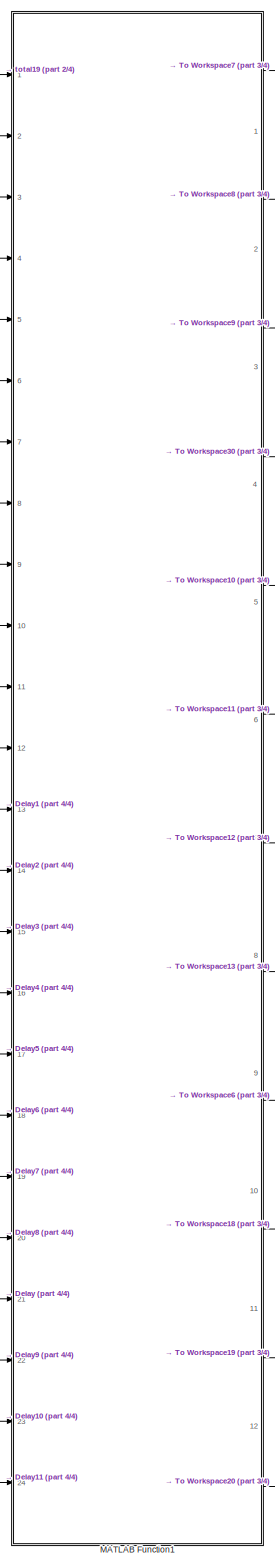
[diagram: root canvas - part 1/4, right side, full height]
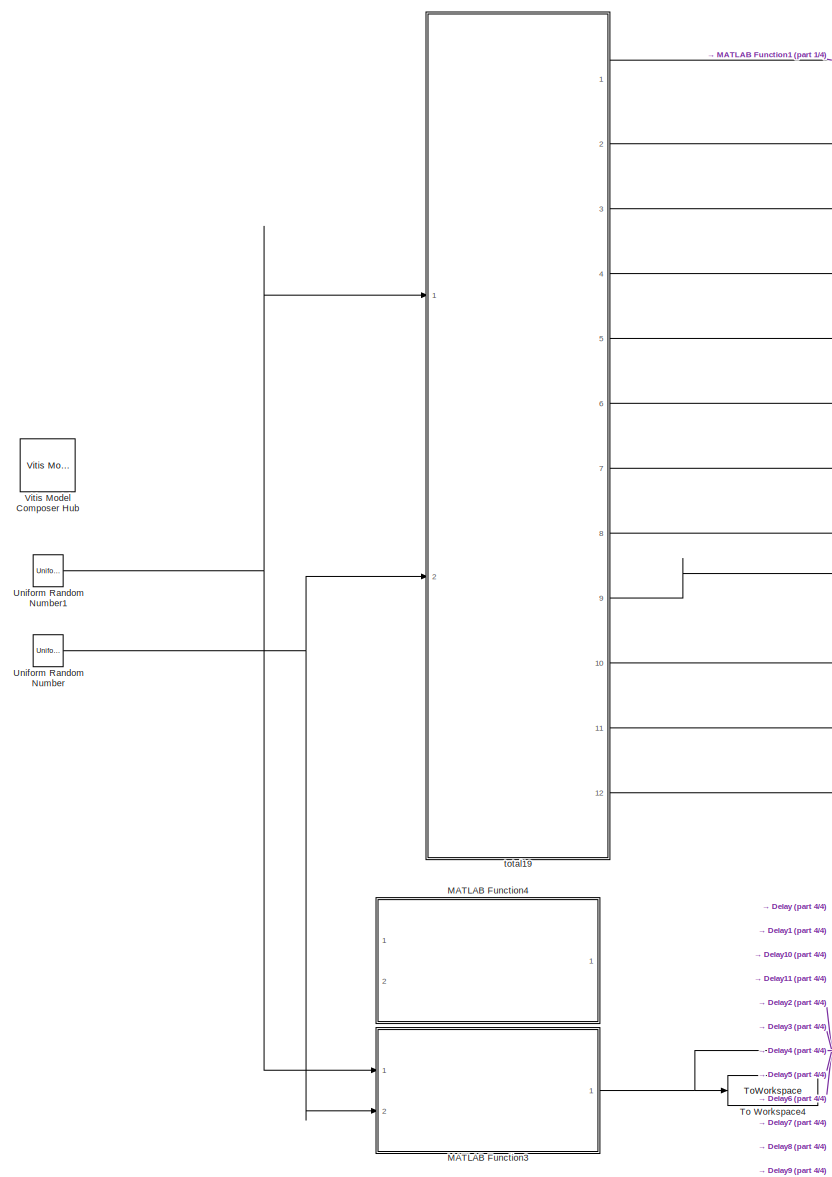
[diagram: root canvas - part 2/4, middle left region]
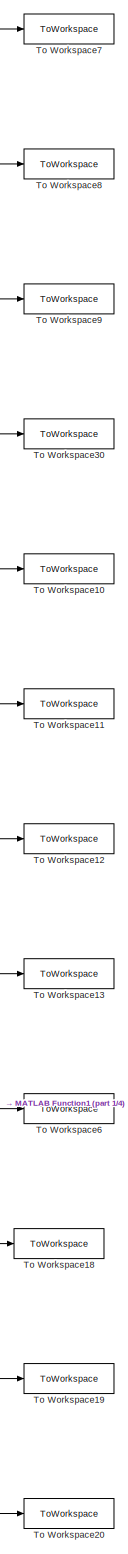
[diagram: root canvas - part 3/4, right side, full height]
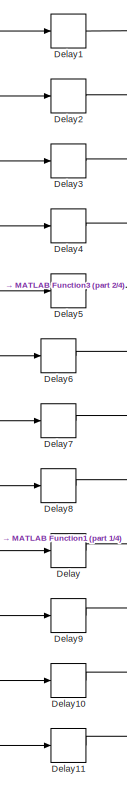
[diagram: root canvas - part 4/4, bottom center region]
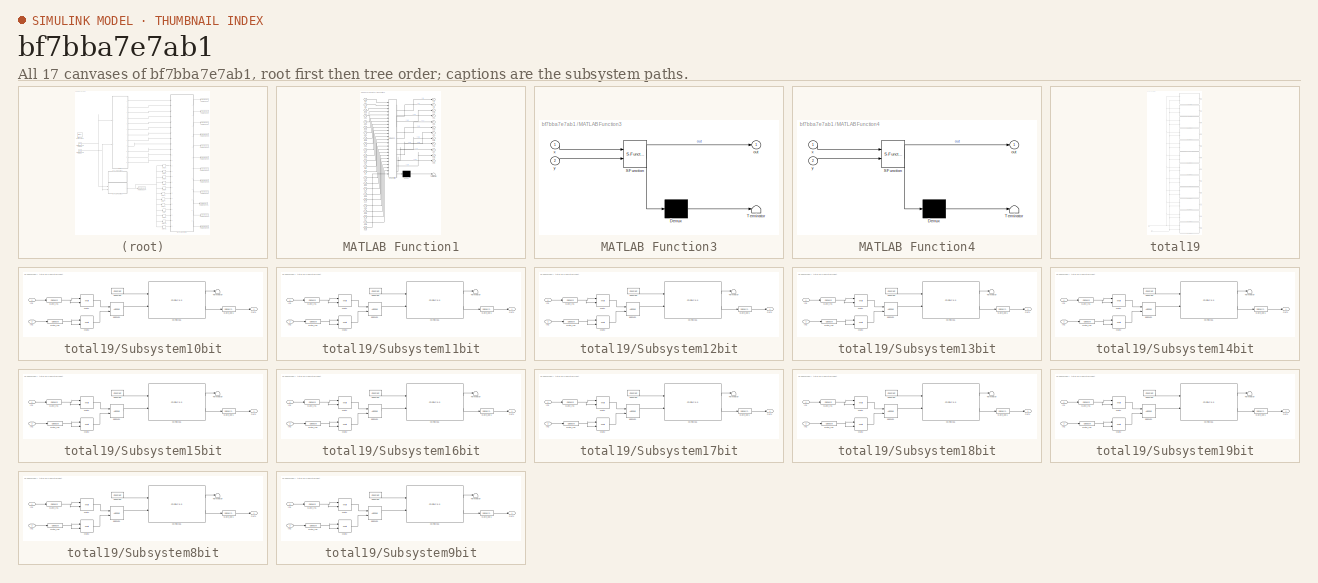
[diagram: thumbnail index - all 17 canvases of the model, root first then tree order]
MODEL slx_bf7bba7e7ab1
KIND model
CONFIG AbsTol = auto
CONFIG EnableMultiTasking = off
CONFIG FixedStep = auto
CONFIG MaxStep = auto
CONFIG MinStep = auto
CONFIG RelTol = 1e-3
CONFIG SampleTimeConstraint = Unconstrained
CONFIG SolverName = VariableStepAuto
CONFIG StartTime = 0.0
CONFIG StopTime = 116
BLOCK [Delay] Delay
  DelayLength = 9
  InputPortMap = u0
  Ports = [1, 1]
BLOCK [Delay] Delay1
  DelayLength = 5
  InputPortMap = u0
  Ports = [1, 1]
BLOCK [Delay] Delay10
  DelayLength = 10
  InputPortMap = u0
  Ports = [1, 1]
BLOCK [Delay] Delay11
  DelayLength = 10
  InputPortMap = u0
  Ports = [1, 1]
BLOCK [Delay] Delay2
  DelayLength = 5
  InputPortMap = u0
  Ports = [1, 1]
BLOCK [Delay] Delay3
  DelayLength = 6
  InputPortMap = u0
  Ports = [1, 1]
BLOCK [Delay] Delay4
  DelayLength = 6
  InputPortMap = u0
  Ports = [1, 1]
BLOCK [Delay] Delay5
  DelayLength = 7
  InputPortMap = u0
  Ports = [1, 1]
BLOCK [Delay] Delay6
  DelayLength = 7
  InputPortMap = u0
  Ports = [1, 1]
BLOCK [Delay] Delay7
  DelayLength = 8
  InputPortMap = u0
  Ports = [1, 1]
BLOCK [Delay] Delay8
  DelayLength = 8
  InputPortMap = u0
  Ports = [1, 1]
BLOCK [Delay] Delay9
  DelayLength = 9
  InputPortMap = u0
  Ports = [1, 1]
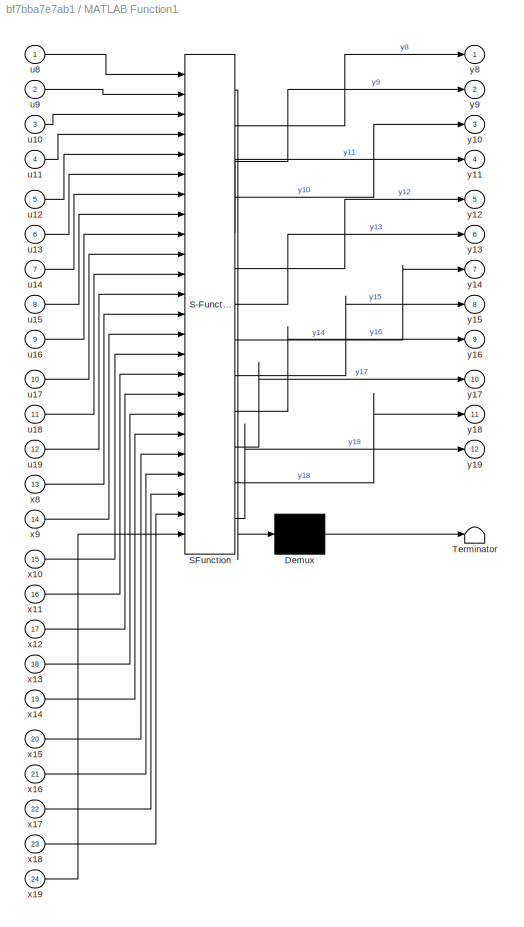
BLOCK [SubSystem] MATLAB Function1
  ErrorFcn = Stateflow.Translate.translate
  PermitHierarchicalResolution = ExplicitOnly
  Ports = [24, 12]
  RequestExecContextInheritance = off
  SFBlockType = MATLAB Function
  TreatAsAtomicUnit = on
BLOCK [Demux] MATLAB Function1/ Demux 
  Outputs = 1
  Ports = [1, 1]
BLOCK [S-Function] MATLAB Function1/ SFunction 
  EnableBusSupport = on
  FunctionName = sf_sfun
  PortCounts = [24 13]
  Ports = [24, 13]
  SFcnIsStateOwnerBlock = off
  SFunctionDeploymentMode = off
  Tag = Stateflow S-Function 1
BLOCK [Terminator] MATLAB Function1/ Terminator 
BLOCK [Inport] MATLAB Function1/u10
  Port = 3
BLOCK [Inport] MATLAB Function1/u11
  Port = 4
BLOCK [Inport] MATLAB Function1/u12
  Port = 5
BLOCK [Inport] MATLAB Function1/u13
  Port = 6
BLOCK [Inport] MATLAB Function1/u14
  Port = 7
BLOCK [Inport] MATLAB Function1/u15
  Port = 8
BLOCK [Inport] MATLAB Function1/u16
  Port = 9
BLOCK [Inport] MATLAB Function1/u17
  Port = 10
BLOCK [Inport] MATLAB Function1/u18
  Port = 11
BLOCK [Inport] MATLAB Function1/u19
  Port = 12
BLOCK [Inport] MATLAB Function1/u8
BLOCK [Inport] MATLAB Function1/u9
  Port = 2
BLOCK [Inport] MATLAB Function1/x10
  Port = 15
BLOCK [Inport] MATLAB Function1/x11
  Port = 16
BLOCK [Inport] MATLAB Function1/x12
  Port = 17
BLOCK [Inport] MATLAB Function1/x13
  Port = 18
BLOCK [Inport] MATLAB Function1/x14
  Port = 19
BLOCK [Inport] MATLAB Function1/x15
  Port = 20
BLOCK [Inport] MATLAB Function1/x16
  Port = 21
BLOCK [Inport] MATLAB Function1/x17
  Port = 22
BLOCK [Inport] MATLAB Function1/x18
  Port = 23
BLOCK [Inport] MATLAB Function1/x19
  Port = 24
BLOCK [Inport] MATLAB Function1/x8
  Port = 13
BLOCK [Inport] MATLAB Function1/x9
  Port = 14
BLOCK [Outport] MATLAB Function1/y10
  Port = 3
BLOCK [Outport] MATLAB Function1/y11
  Port = 4
BLOCK [Outport] MATLAB Function1/y12
  Port = 5
BLOCK [Outport] MATLAB Function1/y13
  Port = 6
BLOCK [Outport] MATLAB Function1/y14
  Port = 7
BLOCK [Outport] MATLAB Function1/y15
  Port = 8
BLOCK [Outport] MATLAB Function1/y16
  Port = 9
BLOCK [Outport] MATLAB Function1/y17
  Port = 10
BLOCK [Outport] MATLAB Function1/y18
  Port = 11
BLOCK [Outport] MATLAB Function1/y19
  Port = 12
BLOCK [Outport] MATLAB Function1/y8
BLOCK [Outport] MATLAB Function1/y9
  Port = 2
BLOCK [SubSystem] MATLAB Function3
  ErrorFcn = Stateflow.Translate.translate
  PermitHierarchicalResolution = ExplicitOnly
  Ports = [2, 1]
  RequestExecContextInheritance = off
  SFBlockType = MATLAB Function
  TreatAsAtomicUnit = on
BLOCK [Demux] MATLAB Function3/ Demux 
  Outputs = 1
  Ports = [1, 1]
BLOCK [S-Function] MATLAB Function3/ SFunction 
  EnableBusSupport = on
  FunctionName = sf_sfun
  PortCounts = [2 2]
  Ports = [2, 2]
  SFcnIsStateOwnerBlock = off
  SFunctionDeploymentMode = off
  Tag = Stateflow S-Function 2
BLOCK [Terminator] MATLAB Function3/ Terminator 
BLOCK [Outport] MATLAB Function3/out
BLOCK [Inport] MATLAB Function3/x
BLOCK [Inport] MATLAB Function3/y
  Port = 2
BLOCK [SubSystem] MATLAB Function4
  Commented = on
  ErrorFcn = Stateflow.Translate.translate
  PermitHierarchicalResolution = ExplicitOnly
  Ports = [2, 1]
  RequestExecContextInheritance = off
  SFBlockType = MATLAB Function
  TreatAsAtomicUnit = on
BLOCK [Demux] MATLAB Function4/ Demux 
  Outputs = 1
  Ports = [1, 1]
BLOCK [S-Function] MATLAB Function4/ SFunction 
  EnableBusSupport = on
  FunctionName = sf_sfun
  PortCounts = [2 2]
  Ports = [2, 2]
  SFcnIsStateOwnerBlock = off
  SFunctionDeploymentMode = off
  Tag = Stateflow S-Function 4
BLOCK [Terminator] MATLAB Function4/ Terminator 
BLOCK [Outport] MATLAB Function4/out
BLOCK [Inport] MATLAB Function4/x
BLOCK [Inport] MATLAB Function4/y
  Port = 2
BLOCK [ToWorkspace] To Workspace10
  FixptAsFi = on
  MaxDataPoints = inf
  Ports = [1]
  SampleTime = -1
  SaveFormat = Structure With Time
  VariableName = out12
BLOCK [ToWorkspace] To Workspace11
  FixptAsFi = on
  MaxDataPoints = inf
  Ports = [1]
  SampleTime = -1
  SaveFormat = Structure With Time
  VariableName = out13
BLOCK [ToWorkspace] To Workspace12
  FixptAsFi = on
  MaxDataPoints = inf
  Ports = [1]
  SampleTime = -1
  SaveFormat = Structure With Time
  VariableName = out14
BLOCK [ToWorkspace] To Workspace13
  FixptAsFi = on
  MaxDataPoints = inf
  Ports = [1]
  SampleTime = -1
  SaveFormat = Structure With Time
  VariableName = out15
BLOCK [ToWorkspace] To Workspace18
  FixptAsFi = on
  MaxDataPoints = inf
  Ports = [1]
  SampleTime = -1
  SaveFormat = Structure With Time
  VariableName = out17
BLOCK [ToWorkspace] To Workspace19
  FixptAsFi = on
  MaxDataPoints = inf
  Ports = [1]
  SampleTime = -1
  SaveFormat = Structure With Time
  VariableName = out18
BLOCK [ToWorkspace] To Workspace20
  FixptAsFi = on
  MaxDataPoints = inf
  Ports = [1]
  SampleTime = -1
  SaveFormat = Structure With Time
  VariableName = out19
BLOCK [ToWorkspace] To Workspace30
  FixptAsFi = on
  MaxDataPoints = inf
  Ports = [1]
  SampleTime = -1
  SaveFormat = Structure With Time
  VariableName = out11
BLOCK [ToWorkspace] To Workspace4
  FixptAsFi = on
  MaxDataPoints = inf
  Ports = [1]
  SampleTime = -1
  SaveFormat = Structure With Time
  VariableName = outGOLD
BLOCK [ToWorkspace] To Workspace6
  FixptAsFi = on
  MaxDataPoints = inf
  Ports = [1]
  SampleTime = -1
  SaveFormat = Structure With Time
  VariableName = out16
BLOCK [ToWorkspace] To Workspace7
  FixptAsFi = on
  MaxDataPoints = inf
  Ports = [1]
  SampleTime = -1
  SaveFormat = Structure With Time
  VariableName = out8
BLOCK [ToWorkspace] To Workspace8
  FixptAsFi = on
  MaxDataPoints = inf
  Ports = [1]
  SampleTime = -1
  SaveFormat = Structure With Time
  VariableName = out9
BLOCK [ToWorkspace] To Workspace9
  FixptAsFi = on
  MaxDataPoints = inf
  Ports = [1]
  SampleTime = -1
  SaveFormat = Structure With Time
  VariableName = out10
BLOCK [UniformRandomNumber] Uniform Random Number
  Maximum = 0.9
  Minimum = -0.9
  SampleTime = 1
BLOCK [UniformRandomNumber] Uniform Random Number1
  Maximum = 0.9
  Minimum = -0.9
  SampleTime = 1
  Seed = 1
BLOCK [Reference] Vitis Model Composer Hub  REF=vmcUtilities/Vitis Model Composer Hub
  Ports = []
  SourceBlock = vmcUtilities/Vitis Model Composer Hub
  SourceType = Implementation
  Tag = genX
  UserDataPersistent = on
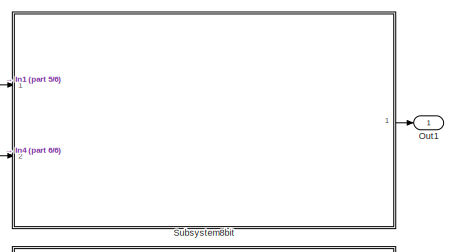
[diagram: total19 - part 1/6, top right region]
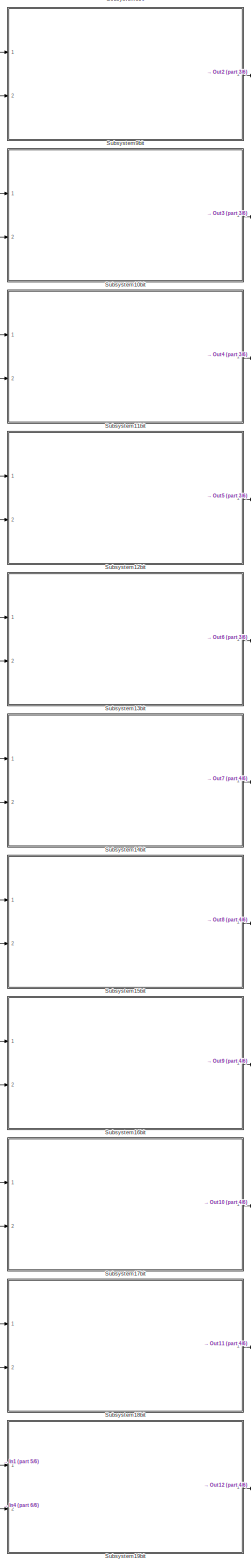
[diagram: total19 - part 2/6, right side, full height]
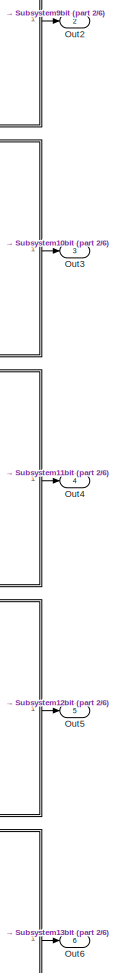
[diagram: total19 - part 3/6, top right region]
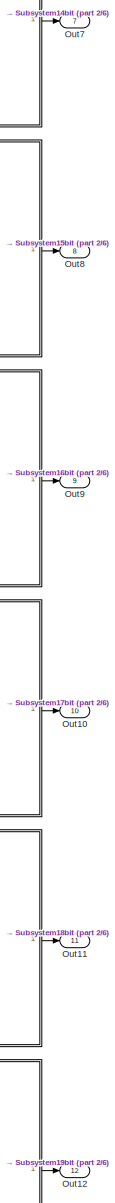
[diagram: total19 - part 4/6, bottom right region]
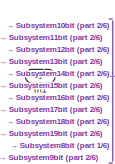
[diagram: total19 - part 5/6, bottom left region]
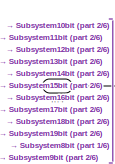
[diagram: total19 - part 6/6, bottom left region]
BLOCK [SubSystem] total19
  Ports = [2, 12]
  RequestExecContextInheritance = off
BLOCK [Inport] total19/In1
BLOCK [Inport] total19/In4
  Port = 2
BLOCK [Outport] total19/Out1
BLOCK [Outport] total19/Out10
  Port = 10
BLOCK [Outport] total19/Out11
  Port = 11
BLOCK [Outport] total19/Out12
  Port = 12
BLOCK [Outport] total19/Out2
  Port = 2
BLOCK [Outport] total19/Out3
  Port = 3
BLOCK [Outport] total19/Out4
  Port = 4
BLOCK [Outport] total19/Out5
  Port = 5
BLOCK [Outport] total19/Out6
  Port = 6
BLOCK [Outport] total19/Out7
  Port = 7
BLOCK [Outport] total19/Out8
  Port = 8
BLOCK [Outport] total19/Out9
  Port = 9
BLOCK [SubSystem] total19/Subsystem10bit
  Ports = [2, 1]
  RequestExecContextInheritance = off
BLOCK [Reference] total19/Subsystem10bit/CORDIC16  REF=hdlDSPIP/CORDIC 6.0 
  Ports = [2, 2]
  SourceBlock = hdlDSPIP/CORDIC 6.0
  SourceType = CORDIC 6.0 Block
BLOCK [Reference] total19/Subsystem10bit/Constant  REF=hdlBasic/Constant
  Ports = [0, 1]
  SourceBlock = hdlBasic/Constant
  SourceType = Constant Block Block
BLOCK [Reference] total19/Subsystem10bit/Gate_In1  REF=hdlBasic/Gateway In
  Ports = [1, 1]
  SourceBlock = hdlBasic/Gateway In
  SourceType = Gateway In Block
BLOCK [Reference] total19/Subsystem10bit/Gate_In2  REF=hdlBasic/Gateway In
  Ports = [1, 1]
  SourceBlock = hdlBasic/Gateway In
  SourceType = Gateway In Block
BLOCK [Reference] total19/Subsystem10bit/Gate_out1  REF=hdlBasic/Gateway Out
  Ports = [1, 1]
  SourceBlock = hdlBasic/Gateway Out
  SourceType = Gateway Out Block
BLOCK [Inport] total19/Subsystem10bit/In1
BLOCK [Inport] total19/Subsystem10bit/In2
  Port = 2
BLOCK [Reference] total19/Subsystem10bit/Mult1  REF=hdlBasic/Mult
  Ports = [2, 1]
  SourceBlock = hdlBasic/Mult
  SourceType = Multiplier Block
BLOCK [Reference] total19/Subsystem10bit/Mult2  REF=hdlBasic/Mult
  Ports = [2, 1]
  SourceBlock = hdlBasic/Mult
  SourceType = Multiplier Block
BLOCK [Outport] total19/Subsystem10bit/Out1
BLOCK [Terminator] total19/Subsystem10bit/Terminator
BLOCK [Reference] total19/Subsystem10bit/addsub1  REF=hdlBasic/AddSub
  Ports = [2, 1]
  SourceBlock = hdlBasic/AddSub
  SourceType = Adder/Subtracter Block
BLOCK [SubSystem] total19/Subsystem11bit
  Ports = [2, 1]
  RequestExecContextInheritance = off
BLOCK [Reference] total19/Subsystem11bit/CORDIC16  REF=hdlDSPIP/CORDIC 6.0 
  Ports = [2, 2]
  SourceBlock = hdlDSPIP/CORDIC 6.0
  SourceType = CORDIC 6.0 Block
BLOCK [Reference] total19/Subsystem11bit/Constant  REF=hdlBasic/Constant
  Ports = [0, 1]
  SourceBlock = hdlBasic/Constant
  SourceType = Constant Block Block
BLOCK [Reference] total19/Subsystem11bit/Gate_In1  REF=hdlBasic/Gateway In
  Ports = [1, 1]
  SourceBlock = hdlBasic/Gateway In
  SourceType = Gateway In Block
BLOCK [Reference] total19/Subsystem11bit/Gate_In2  REF=hdlBasic/Gateway In
  Ports = [1, 1]
  SourceBlock = hdlBasic/Gateway In
  SourceType = Gateway In Block
BLOCK [Reference] total19/Subsystem11bit/Gate_out1  REF=hdlBasic/Gateway Out
  Ports = [1, 1]
  SourceBlock = hdlBasic/Gateway Out
  SourceType = Gateway Out Block
BLOCK [Inport] total19/Subsystem11bit/In1
BLOCK [Inport] total19/Subsystem11bit/In2
  Port = 2
BLOCK [Reference] total19/Subsystem11bit/Mult1  REF=hdlBasic/Mult
  Ports = [2, 1]
  SourceBlock = hdlBasic/Mult
  SourceType = Multiplier Block
BLOCK [Reference] total19/Subsystem11bit/Mult2  REF=hdlBasic/Mult
  Ports = [2, 1]
  SourceBlock = hdlBasic/Mult
  SourceType = Multiplier Block
BLOCK [Outport] total19/Subsystem11bit/Out1
BLOCK [Terminator] total19/Subsystem11bit/Terminator
BLOCK [Reference] total19/Subsystem11bit/addsub1  REF=hdlBasic/AddSub
  Ports = [2, 1]
  SourceBlock = hdlBasic/AddSub
  SourceType = Adder/Subtracter Block
BLOCK [SubSystem] total19/Subsystem12bit
  Ports = [2, 1]
  RequestExecContextInheritance = off
BLOCK [Reference] total19/Subsystem12bit/CORDIC16  REF=hdlDSPIP/CORDIC 6.0 
  Ports = [2, 2]
  SourceBlock = hdlDSPIP/CORDIC 6.0
  SourceType = CORDIC 6.0 Block
BLOCK [Reference] total19/Subsystem12bit/Constant  REF=hdlBasic/Constant
  Ports = [0, 1]
  SourceBlock = hdlBasic/Constant
  SourceType = Constant Block Block
BLOCK [Reference] total19/Subsystem12bit/Gate_In1  REF=hdlBasic/Gateway In
  Ports = [1, 1]
  SourceBlock = hdlBasic/Gateway In
  SourceType = Gateway In Block
BLOCK [Reference] total19/Subsystem12bit/Gate_In2  REF=hdlBasic/Gateway In
  Ports = [1, 1]
  SourceBlock = hdlBasic/Gateway In
  SourceType = Gateway In Block
BLOCK [Reference] total19/Subsystem12bit/Gate_out1  REF=hdlBasic/Gateway Out
  Ports = [1, 1]
  SourceBlock = hdlBasic/Gateway Out
  SourceType = Gateway Out Block
BLOCK [Inport] total19/Subsystem12bit/In1
BLOCK [Inport] total19/Subsystem12bit/In2
  Port = 2
BLOCK [Reference] total19/Subsystem12bit/Mult1  REF=hdlBasic/Mult
  Ports = [2, 1]
  SourceBlock = hdlBasic/Mult
  SourceType = Multiplier Block
BLOCK [Reference] total19/Subsystem12bit/Mult2  REF=hdlBasic/Mult
  Ports = [2, 1]
  SourceBlock = hdlBasic/Mult
  SourceType = Multiplier Block
BLOCK [Outport] total19/Subsystem12bit/Out1
BLOCK [Terminator] total19/Subsystem12bit/Terminator
BLOCK [Reference] total19/Subsystem12bit/addsub1  REF=hdlBasic/AddSub
  Ports = [2, 1]
  SourceBlock = hdlBasic/AddSub
  SourceType = Adder/Subtracter Block
BLOCK [SubSystem] total19/Subsystem13bit
  Ports = [2, 1]
  RequestExecContextInheritance = off
BLOCK [Reference] total19/Subsystem13bit/CORDIC16  REF=hdlDSPIP/CORDIC 6.0 
  Ports = [2, 2]
  SourceBlock = hdlDSPIP/CORDIC 6.0
  SourceType = CORDIC 6.0 Block
BLOCK [Reference] total19/Subsystem13bit/Constant  REF=hdlBasic/Constant
  Ports = [0, 1]
  SourceBlock = hdlBasic/Constant
  SourceType = Constant Block Block
BLOCK [Reference] total19/Subsystem13bit/Gate_In1  REF=hdlBasic/Gateway In
  Ports = [1, 1]
  SourceBlock = hdlBasic/Gateway In
  SourceType = Gateway In Block
BLOCK [Reference] total19/Subsystem13bit/Gate_In2  REF=hdlBasic/Gateway In
  Ports = [1, 1]
  SourceBlock = hdlBasic/Gateway In
  SourceType = Gateway In Block
BLOCK [Reference] total19/Subsystem13bit/Gate_out1  REF=hdlBasic/Gateway Out
  Ports = [1, 1]
  SourceBlock = hdlBasic/Gateway Out
  SourceType = Gateway Out Block
BLOCK [Inport] total19/Subsystem13bit/In1
BLOCK [Inport] total19/Subsystem13bit/In2
  Port = 2
BLOCK [Reference] total19/Subsystem13bit/Mult1  REF=hdlBasic/Mult
  Ports = [2, 1]
  SourceBlock = hdlBasic/Mult
  SourceType = Multiplier Block
BLOCK [Reference] total19/Subsystem13bit/Mult2  REF=hdlBasic/Mult
  Ports = [2, 1]
  SourceBlock = hdlBasic/Mult
  SourceType = Multiplier Block
BLOCK [Outport] total19/Subsystem13bit/Out1
BLOCK [Terminator] total19/Subsystem13bit/Terminator
BLOCK [Reference] total19/Subsystem13bit/addsub1  REF=hdlBasic/AddSub
  Ports = [2, 1]
  SourceBlock = hdlBasic/AddSub
  SourceType = Adder/Subtracter Block
BLOCK [SubSystem] total19/Subsystem14bit
  Ports = [2, 1]
  RequestExecContextInheritance = off
BLOCK [Reference] total19/Subsystem14bit/CORDIC16  REF=hdlDSPIP/CORDIC 6.0 
  Ports = [2, 2]
  SourceBlock = hdlDSPIP/CORDIC 6.0
  SourceType = CORDIC 6.0 Block
BLOCK [Reference] total19/Subsystem14bit/Constant  REF=hdlBasic/Constant
  Ports = [0, 1]
  SourceBlock = hdlBasic/Constant
  SourceType = Constant Block Block
BLOCK [Reference] total19/Subsystem14bit/Gate_In1  REF=hdlBasic/Gateway In
  Ports = [1, 1]
  SourceBlock = hdlBasic/Gateway In
  SourceType = Gateway In Block
BLOCK [Reference] total19/Subsystem14bit/Gate_In2  REF=hdlBasic/Gateway In
  Ports = [1, 1]
  SourceBlock = hdlBasic/Gateway In
  SourceType = Gateway In Block
BLOCK [Reference] total19/Subsystem14bit/Gate_out1  REF=hdlBasic/Gateway Out
  Ports = [1, 1]
  SourceBlock = hdlBasic/Gateway Out
  SourceType = Gateway Out Block
BLOCK [Inport] total19/Subsystem14bit/In1
BLOCK [Inport] total19/Subsystem14bit/In2
  Port = 2
BLOCK [Reference] total19/Subsystem14bit/Mult1  REF=hdlBasic/Mult
  Ports = [2, 1]
  SourceBlock = hdlBasic/Mult
  SourceType = Multiplier Block
BLOCK [Reference] total19/Subsystem14bit/Mult2  REF=hdlBasic/Mult
  Ports = [2, 1]
  SourceBlock = hdlBasic/Mult
  SourceType = Multiplier Block
BLOCK [Outport] total19/Subsystem14bit/Out1
BLOCK [Terminator] total19/Subsystem14bit/Terminator
BLOCK [Reference] total19/Subsystem14bit/addsub1  REF=hdlBasic/AddSub
  Ports = [2, 1]
  SourceBlock = hdlBasic/AddSub
  SourceType = Adder/Subtracter Block
BLOCK [SubSystem] total19/Subsystem15bit
  Ports = [2, 1]
  RequestExecContextInheritance = off
BLOCK [Reference] total19/Subsystem15bit/CORDIC16  REF=hdlDSPIP/CORDIC 6.0 
  Ports = [2, 2]
  SourceBlock = hdlDSPIP/CORDIC 6.0
  SourceType = CORDIC 6.0 Block
BLOCK [Reference] total19/Subsystem15bit/Constant  REF=hdlBasic/Constant
  Ports = [0, 1]
  SourceBlock = hdlBasic/Constant
  SourceType = Constant Block Block
BLOCK [Reference] total19/Subsystem15bit/Gate_In1  REF=hdlBasic/Gateway In
  Ports = [1, 1]
  SourceBlock = hdlBasic/Gateway In
  SourceType = Gateway In Block
BLOCK [Reference] total19/Subsystem15bit/Gate_In2  REF=hdlBasic/Gateway In
  Ports = [1, 1]
  SourceBlock = hdlBasic/Gateway In
  SourceType = Gateway In Block
BLOCK [Reference] total19/Subsystem15bit/Gate_out1  REF=hdlBasic/Gateway Out
  Ports = [1, 1]
  SourceBlock = hdlBasic/Gateway Out
  SourceType = Gateway Out Block
BLOCK [Inport] total19/Subsystem15bit/In1
BLOCK [Inport] total19/Subsystem15bit/In2
  Port = 2
BLOCK [Reference] total19/Subsystem15bit/Mult1  REF=hdlBasic/Mult
  Ports = [2, 1]
  SourceBlock = hdlBasic/Mult
  SourceType = Multiplier Block
BLOCK [Reference] total19/Subsystem15bit/Mult2  REF=hdlBasic/Mult
  Ports = [2, 1]
  SourceBlock = hdlBasic/Mult
  SourceType = Multiplier Block
BLOCK [Outport] total19/Subsystem15bit/Out1
BLOCK [Terminator] total19/Subsystem15bit/Terminator
BLOCK [Reference] total19/Subsystem15bit/addsub1  REF=hdlBasic/AddSub
  Ports = [2, 1]
  SourceBlock = hdlBasic/AddSub
  SourceType = Adder/Subtracter Block
BLOCK [SubSystem] total19/Subsystem16bit
  Ports = [2, 1]
  RequestExecContextInheritance = off
BLOCK [Reference] total19/Subsystem16bit/CORDIC16  REF=hdlDSPIP/CORDIC 6.0 
  Ports = [2, 2]
  SourceBlock = hdlDSPIP/CORDIC 6.0
  SourceType = CORDIC 6.0 Block
BLOCK [Reference] total19/Subsystem16bit/Constant  REF=hdlBasic/Constant
  Ports = [0, 1]
  SourceBlock = hdlBasic/Constant
  SourceType = Constant Block Block
BLOCK [Reference] total19/Subsystem16bit/Gate_In1  REF=hdlBasic/Gateway In
  Ports = [1, 1]
  SourceBlock = hdlBasic/Gateway In
  SourceType = Gateway In Block
BLOCK [Reference] total19/Subsystem16bit/Gate_In2  REF=hdlBasic/Gateway In
  Ports = [1, 1]
  SourceBlock = hdlBasic/Gateway In
  SourceType = Gateway In Block
BLOCK [Reference] total19/Subsystem16bit/Gate_out1  REF=hdlBasic/Gateway Out
  Ports = [1, 1]
  SourceBlock = hdlBasic/Gateway Out
  SourceType = Gateway Out Block
BLOCK [Inport] total19/Subsystem16bit/In1
BLOCK [Inport] total19/Subsystem16bit/In2
  Port = 2
BLOCK [Reference] total19/Subsystem16bit/Mult1  REF=hdlBasic/Mult
  Ports = [2, 1]
  SourceBlock = hdlBasic/Mult
  SourceType = Multiplier Block
BLOCK [Reference] total19/Subsystem16bit/Mult2  REF=hdlBasic/Mult
  Ports = [2, 1]
  SourceBlock = hdlBasic/Mult
  SourceType = Multiplier Block
BLOCK [Outport] total19/Subsystem16bit/Out1
BLOCK [Terminator] total19/Subsystem16bit/Terminator
BLOCK [Reference] total19/Subsystem16bit/addsub1  REF=hdlBasic/AddSub
  Ports = [2, 1]
  SourceBlock = hdlBasic/AddSub
  SourceType = Adder/Subtracter Block
BLOCK [SubSystem] total19/Subsystem17bit
  Ports = [2, 1]
  RequestExecContextInheritance = off
BLOCK [Reference] total19/Subsystem17bit/CORDIC16  REF=hdlDSPIP/CORDIC 6.0 
  Ports = [2, 2]
  SourceBlock = hdlDSPIP/CORDIC 6.0
  SourceType = CORDIC 6.0 Block
BLOCK [Reference] total19/Subsystem17bit/Constant  REF=hdlBasic/Constant
  Ports = [0, 1]
  SourceBlock = hdlBasic/Constant
  SourceType = Constant Block Block
BLOCK [Reference] total19/Subsystem17bit/Gate_In1  REF=hdlBasic/Gateway In
  Ports = [1, 1]
  SourceBlock = hdlBasic/Gateway In
  SourceType = Gateway In Block
BLOCK [Reference] total19/Subsystem17bit/Gate_In2  REF=hdlBasic/Gateway In
  Ports = [1, 1]
  SourceBlock = hdlBasic/Gateway In
  SourceType = Gateway In Block
BLOCK [Reference] total19/Subsystem17bit/Gate_out1  REF=hdlBasic/Gateway Out
  Ports = [1, 1]
  SourceBlock = hdlBasic/Gateway Out
  SourceType = Gateway Out Block
BLOCK [Inport] total19/Subsystem17bit/In1
BLOCK [Inport] total19/Subsystem17bit/In2
  Port = 2
BLOCK [Reference] total19/Subsystem17bit/Mult1  REF=hdlBasic/Mult
  Ports = [2, 1]
  SourceBlock = hdlBasic/Mult
  SourceType = Multiplier Block
BLOCK [Reference] total19/Subsystem17bit/Mult2  REF=hdlBasic/Mult
  Ports = [2, 1]
  SourceBlock = hdlBasic/Mult
  SourceType = Multiplier Block
BLOCK [Outport] total19/Subsystem17bit/Out1
BLOCK [Terminator] total19/Subsystem17bit/Terminator
BLOCK [Reference] total19/Subsystem17bit/addsub1  REF=hdlBasic/AddSub
  Ports = [2, 1]
  SourceBlock = hdlBasic/AddSub
  SourceType = Adder/Subtracter Block
BLOCK [SubSystem] total19/Subsystem18bit
  Ports = [2, 1]
  RequestExecContextInheritance = off
BLOCK [Reference] total19/Subsystem18bit/CORDIC16  REF=hdlDSPIP/CORDIC 6.0 
  Ports = [2, 2]
  SourceBlock = hdlDSPIP/CORDIC 6.0
  SourceType = CORDIC 6.0 Block
BLOCK [Reference] total19/Subsystem18bit/Constant  REF=hdlBasic/Constant
  Ports = [0, 1]
  SourceBlock = hdlBasic/Constant
  SourceType = Constant Block Block
BLOCK [Reference] total19/Subsystem18bit/Gate_In1  REF=hdlBasic/Gateway In
  Ports = [1, 1]
  SourceBlock = hdlBasic/Gateway In
  SourceType = Gateway In Block
BLOCK [Reference] total19/Subsystem18bit/Gate_In2  REF=hdlBasic/Gateway In
  Ports = [1, 1]
  SourceBlock = hdlBasic/Gateway In
  SourceType = Gateway In Block
BLOCK [Reference] total19/Subsystem18bit/Gate_out1  REF=hdlBasic/Gateway Out
  Ports = [1, 1]
  SourceBlock = hdlBasic/Gateway Out
  SourceType = Gateway Out Block
BLOCK [Inport] total19/Subsystem18bit/In1
BLOCK [Inport] total19/Subsystem18bit/In2
  Port = 2
BLOCK [Reference] total19/Subsystem18bit/Mult1  REF=hdlBasic/Mult
  Ports = [2, 1]
  SourceBlock = hdlBasic/Mult
  SourceType = Multiplier Block
BLOCK [Reference] total19/Subsystem18bit/Mult2  REF=hdlBasic/Mult
  Ports = [2, 1]
  SourceBlock = hdlBasic/Mult
  SourceType = Multiplier Block
BLOCK [Outport] total19/Subsystem18bit/Out1
BLOCK [Terminator] total19/Subsystem18bit/Terminator
BLOCK [Reference] total19/Subsystem18bit/addsub1  REF=hdlBasic/AddSub
  Ports = [2, 1]
  SourceBlock = hdlBasic/AddSub
  SourceType = Adder/Subtracter Block
BLOCK [SubSystem] total19/Subsystem19bit
  Ports = [2, 1]
  RequestExecContextInheritance = off
BLOCK [Reference] total19/Subsystem19bit/CORDIC16  REF=hdlDSPIP/CORDIC 6.0 
  Ports = [2, 2]
  SourceBlock = hdlDSPIP/CORDIC 6.0
  SourceType = CORDIC 6.0 Block
BLOCK [Reference] total19/Subsystem19bit/Constant  REF=hdlBasic/Constant
  Ports = [0, 1]
  SourceBlock = hdlBasic/Constant
  SourceType = Constant Block Block
BLOCK [Reference] total19/Subsystem19bit/Gate_In1  REF=hdlBasic/Gateway In
  Ports = [1, 1]
  SourceBlock = hdlBasic/Gateway In
  SourceType = Gateway In Block
BLOCK [Reference] total19/Subsystem19bit/Gate_In2  REF=hdlBasic/Gateway In
  Ports = [1, 1]
  SourceBlock = hdlBasic/Gateway In
  SourceType = Gateway In Block
BLOCK [Reference] total19/Subsystem19bit/Gate_out1  REF=hdlBasic/Gateway Out
  Ports = [1, 1]
  SourceBlock = hdlBasic/Gateway Out
  SourceType = Gateway Out Block
BLOCK [Inport] total19/Subsystem19bit/In1
BLOCK [Inport] total19/Subsystem19bit/In2
  Port = 2
BLOCK [Reference] total19/Subsystem19bit/Mult1  REF=hdlBasic/Mult
  Ports = [2, 1]
  SourceBlock = hdlBasic/Mult
  SourceType = Multiplier Block
BLOCK [Reference] total19/Subsystem19bit/Mult2  REF=hdlBasic/Mult
  Ports = [2, 1]
  SourceBlock = hdlBasic/Mult
  SourceType = Multiplier Block
BLOCK [Outport] total19/Subsystem19bit/Out1
BLOCK [Terminator] total19/Subsystem19bit/Terminator
BLOCK [Reference] total19/Subsystem19bit/addsub1  REF=hdlBasic/AddSub
  Ports = [2, 1]
  SourceBlock = hdlBasic/AddSub
  SourceType = Adder/Subtracter Block
BLOCK [SubSystem] total19/Subsystem8bit
  Ports = [2, 1]
  RequestExecContextInheritance = off
BLOCK [Reference] total19/Subsystem8bit/CORDIC16  REF=hdlDSPIP/CORDIC 6.0 
  Ports = [2, 2]
  SourceBlock = hdlDSPIP/CORDIC 6.0
  SourceType = CORDIC 6.0 Block
BLOCK [Reference] total19/Subsystem8bit/Constant  REF=hdlBasic/Constant
  Ports = [0, 1]
  SourceBlock = hdlBasic/Constant
  SourceType = Constant Block Block
BLOCK [Reference] total19/Subsystem8bit/Gate_In1  REF=hdlBasic/Gateway In
  Ports = [1, 1]
  SourceBlock = hdlBasic/Gateway In
  SourceType = Gateway In Block
BLOCK [Reference] total19/Subsystem8bit/Gate_In2  REF=hdlBasic/Gateway In
  Ports = [1, 1]
  SourceBlock = hdlBasic/Gateway In
  SourceType = Gateway In Block
BLOCK [Reference] total19/Subsystem8bit/Gate_out1  REF=hdlBasic/Gateway Out
  Ports = [1, 1]
  SourceBlock = hdlBasic/Gateway Out
  SourceType = Gateway Out Block
BLOCK [Inport] total19/Subsystem8bit/In1
BLOCK [Inport] total19/Subsystem8bit/In2
  Port = 2
BLOCK [Reference] total19/Subsystem8bit/Mult1  REF=hdlBasic/Mult
  Ports = [2, 1]
  SourceBlock = hdlBasic/Mult
  SourceType = Multiplier Block
BLOCK [Reference] total19/Subsystem8bit/Mult2  REF=hdlBasic/Mult
  Ports = [2, 1]
  SourceBlock = hdlBasic/Mult
  SourceType = Multiplier Block
BLOCK [Outport] total19/Subsystem8bit/Out1
BLOCK [Terminator] total19/Subsystem8bit/Terminator
BLOCK [Reference] total19/Subsystem8bit/addsub1  REF=hdlBasic/AddSub
  Ports = [2, 1]
  SourceBlock = hdlBasic/AddSub
  SourceType = Adder/Subtracter Block
BLOCK [SubSystem] total19/Subsystem9bit
  Ports = [2, 1]
  RequestExecContextInheritance = off
BLOCK [Reference] total19/Subsystem9bit/CORDIC16  REF=hdlDSPIP/CORDIC 6.0 
  Ports = [2, 2]
  SourceBlock = hdlDSPIP/CORDIC 6.0
  SourceType = CORDIC 6.0 Block
BLOCK [Reference] total19/Subsystem9bit/Constant  REF=hdlBasic/Constant
  Ports = [0, 1]
  SourceBlock = hdlBasic/Constant
  SourceType = Constant Block Block
BLOCK [Reference] total19/Subsystem9bit/Gate_In1  REF=hdlBasic/Gateway In
  Ports = [1, 1]
  SourceBlock = hdlBasic/Gateway In
  SourceType = Gateway In Block
BLOCK [Reference] total19/Subsystem9bit/Gate_In2  REF=hdlBasic/Gateway In
  Ports = [1, 1]
  SourceBlock = hdlBasic/Gateway In
  SourceType = Gateway In Block
BLOCK [Reference] total19/Subsystem9bit/Gate_out1  REF=hdlBasic/Gateway Out
  Ports = [1, 1]
  SourceBlock = hdlBasic/Gateway Out
  SourceType = Gateway Out Block
BLOCK [Inport] total19/Subsystem9bit/In1
BLOCK [Inport] total19/Subsystem9bit/In2
  Port = 2
BLOCK [Reference] total19/Subsystem9bit/Mult1  REF=hdlBasic/Mult
  Ports = [2, 1]
  SourceBlock = hdlBasic/Mult
  SourceType = Multiplier Block
BLOCK [Reference] total19/Subsystem9bit/Mult2  REF=hdlBasic/Mult
  Ports = [2, 1]
  SourceBlock = hdlBasic/Mult
  SourceType = Multiplier Block
BLOCK [Outport] total19/Subsystem9bit/Out1
BLOCK [Terminator] total19/Subsystem9bit/Terminator
BLOCK [Reference] total19/Subsystem9bit/addsub1  REF=hdlBasic/AddSub
  Ports = [2, 1]
  SourceBlock = hdlBasic/AddSub
  SourceType = Adder/Subtracter Block
LINE Delay10:1 -> MATLAB Function1:23
LINE Delay11:1 -> MATLAB Function1:24
LINE Delay1:1 -> MATLAB Function1:13
LINE Delay2:1 -> MATLAB Function1:14
LINE Delay3:1 -> MATLAB Function1:15
LINE Delay4:1 -> MATLAB Function1:16
LINE Delay5:1 -> MATLAB Function1:17
LINE Delay6:1 -> MATLAB Function1:18
LINE Delay7:1 -> MATLAB Function1:19
LINE Delay8:1 -> MATLAB Function1:20
LINE Delay9:1 -> MATLAB Function1:22
LINE Delay:1 -> MATLAB Function1:21
LINE MATLAB Function1:1 -> To Workspace7:1
LINE MATLAB Function1:10 -> To Workspace18:1
LINE MATLAB Function1:11 -> To Workspace19:1
LINE MATLAB Function1:12 -> To Workspace20:1
LINE MATLAB Function1:2 -> To Workspace8:1
LINE MATLAB Function1:3 -> To Workspace9:1
LINE MATLAB Function1:4 -> To Workspace30:1
LINE MATLAB Function1:5 -> To Workspace10:1
LINE MATLAB Function1:6 -> To Workspace11:1
LINE MATLAB Function1:7 -> To Workspace12:1
LINE MATLAB Function1:8 -> To Workspace13:1
LINE MATLAB Function1:9 -> To Workspace6:1
NET MATLAB Function3:1 -> Delay10:1, Delay11:1, Delay1:1, Delay2:1, Delay3:1, Delay4:1, Delay5:1, Delay6:1, Delay7:1, Delay8:1, Delay9:1, Delay:1, To Workspace4:1
NET Uniform Random Number1:1 -> MATLAB Function3:1, total19:1
NET Uniform Random Number:1 -> MATLAB Function3:2, total19:2
NET total19/In1:1 -> total19/Subsystem10bit:1, total19/Subsystem11bit:1, total19/Subsystem12bit:1, total19/Subsystem13bit:1, total19/Subsystem14bit:1, total19/Subsystem15bit:1, total19/Subsystem16bit:1, total19/Subsystem17bit:1, total19/Subsystem18bit:1, total19/Subsystem19bit:1, total19/Subsystem8bit:1, total19/Subsystem9bit:1
NET total19/In4:1 -> total19/Subsystem10bit:2, total19/Subsystem11bit:2, total19/Subsystem12bit:2, total19/Subsystem13bit:2, total19/Subsystem14bit:2, total19/Subsystem15bit:2, total19/Subsystem16bit:2, total19/Subsystem17bit:2, total19/Subsystem18bit:2, total19/Subsystem19bit:2, total19/Subsystem8bit:2, total19/Subsystem9bit:2
LINE total19/Subsystem10bit/CORDIC16:1 -> total19/Subsystem10bit/Terminator:1
LINE total19/Subsystem10bit/CORDIC16:2 -> total19/Subsystem10bit/Gate_out1:1
LINE total19/Subsystem10bit/Constant:1 -> total19/Subsystem10bit/CORDIC16:1
NET total19/Subsystem10bit/Gate_In1:1 -> total19/Subsystem10bit/Mult1:1, total19/Subsystem10bit/Mult1:2
NET total19/Subsystem10bit/Gate_In2:1 -> total19/Subsystem10bit/Mult2:1, total19/Subsystem10bit/Mult2:2
LINE total19/Subsystem10bit/Gate_out1:1 -> total19/Subsystem10bit/Out1:1
LINE total19/Subsystem10bit/In1:1 -> total19/Subsystem10bit/Gate_In1:1
LINE total19/Subsystem10bit/In2:1 -> total19/Subsystem10bit/Gate_In2:1
LINE total19/Subsystem10bit/Mult1:1 -> total19/Subsystem10bit/addsub1:1
LINE total19/Subsystem10bit/Mult2:1 -> total19/Subsystem10bit/addsub1:2
LINE total19/Subsystem10bit/addsub1:1 -> total19/Subsystem10bit/CORDIC16:2
LINE total19/Subsystem10bit:1 -> total19/Out3:1
LINE total19/Subsystem11bit/CORDIC16:1 -> total19/Subsystem11bit/Terminator:1
LINE total19/Subsystem11bit/CORDIC16:2 -> total19/Subsystem11bit/Gate_out1:1
LINE total19/Subsystem11bit/Constant:1 -> total19/Subsystem11bit/CORDIC16:1
NET total19/Subsystem11bit/Gate_In1:1 -> total19/Subsystem11bit/Mult1:1, total19/Subsystem11bit/Mult1:2
NET total19/Subsystem11bit/Gate_In2:1 -> total19/Subsystem11bit/Mult2:1, total19/Subsystem11bit/Mult2:2
LINE total19/Subsystem11bit/Gate_out1:1 -> total19/Subsystem11bit/Out1:1
LINE total19/Subsystem11bit/In1:1 -> total19/Subsystem11bit/Gate_In1:1
LINE total19/Subsystem11bit/In2:1 -> total19/Subsystem11bit/Gate_In2:1
LINE total19/Subsystem11bit/Mult1:1 -> total19/Subsystem11bit/addsub1:1
LINE total19/Subsystem11bit/Mult2:1 -> total19/Subsystem11bit/addsub1:2
LINE total19/Subsystem11bit/addsub1:1 -> total19/Subsystem11bit/CORDIC16:2
LINE total19/Subsystem11bit:1 -> total19/Out4:1
LINE total19/Subsystem12bit/CORDIC16:1 -> total19/Subsystem12bit/Terminator:1
LINE total19/Subsystem12bit/CORDIC16:2 -> total19/Subsystem12bit/Gate_out1:1
LINE total19/Subsystem12bit/Constant:1 -> total19/Subsystem12bit/CORDIC16:1
NET total19/Subsystem12bit/Gate_In1:1 -> total19/Subsystem12bit/Mult1:1, total19/Subsystem12bit/Mult1:2
NET total19/Subsystem12bit/Gate_In2:1 -> total19/Subsystem12bit/Mult2:1, total19/Subsystem12bit/Mult2:2
LINE total19/Subsystem12bit/Gate_out1:1 -> total19/Subsystem12bit/Out1:1
LINE total19/Subsystem12bit/In1:1 -> total19/Subsystem12bit/Gate_In1:1
LINE total19/Subsystem12bit/In2:1 -> total19/Subsystem12bit/Gate_In2:1
LINE total19/Subsystem12bit/Mult1:1 -> total19/Subsystem12bit/addsub1:1
LINE total19/Subsystem12bit/Mult2:1 -> total19/Subsystem12bit/addsub1:2
LINE total19/Subsystem12bit/addsub1:1 -> total19/Subsystem12bit/CORDIC16:2
LINE total19/Subsystem12bit:1 -> total19/Out5:1
LINE total19/Subsystem13bit/CORDIC16:1 -> total19/Subsystem13bit/Terminator:1
LINE total19/Subsystem13bit/CORDIC16:2 -> total19/Subsystem13bit/Gate_out1:1
LINE total19/Subsystem13bit/Constant:1 -> total19/Subsystem13bit/CORDIC16:1
NET total19/Subsystem13bit/Gate_In1:1 -> total19/Subsystem13bit/Mult1:1, total19/Subsystem13bit/Mult1:2
NET total19/Subsystem13bit/Gate_In2:1 -> total19/Subsystem13bit/Mult2:1, total19/Subsystem13bit/Mult2:2
LINE total19/Subsystem13bit/Gate_out1:1 -> total19/Subsystem13bit/Out1:1
LINE total19/Subsystem13bit/In1:1 -> total19/Subsystem13bit/Gate_In1:1
LINE total19/Subsystem13bit/In2:1 -> total19/Subsystem13bit/Gate_In2:1
LINE total19/Subsystem13bit/Mult1:1 -> total19/Subsystem13bit/addsub1:1
LINE total19/Subsystem13bit/Mult2:1 -> total19/Subsystem13bit/addsub1:2
LINE total19/Subsystem13bit/addsub1:1 -> total19/Subsystem13bit/CORDIC16:2
LINE total19/Subsystem13bit:1 -> total19/Out6:1
LINE total19/Subsystem14bit/CORDIC16:1 -> total19/Subsystem14bit/Terminator:1
LINE total19/Subsystem14bit/CORDIC16:2 -> total19/Subsystem14bit/Gate_out1:1
LINE total19/Subsystem14bit/Constant:1 -> total19/Subsystem14bit/CORDIC16:1
NET total19/Subsystem14bit/Gate_In1:1 -> total19/Subsystem14bit/Mult1:1, total19/Subsystem14bit/Mult1:2
NET total19/Subsystem14bit/Gate_In2:1 -> total19/Subsystem14bit/Mult2:1, total19/Subsystem14bit/Mult2:2
LINE total19/Subsystem14bit/Gate_out1:1 -> total19/Subsystem14bit/Out1:1
LINE total19/Subsystem14bit/In1:1 -> total19/Subsystem14bit/Gate_In1:1
LINE total19/Subsystem14bit/In2:1 -> total19/Subsystem14bit/Gate_In2:1
LINE total19/Subsystem14bit/Mult1:1 -> total19/Subsystem14bit/addsub1:1
LINE total19/Subsystem14bit/Mult2:1 -> total19/Subsystem14bit/addsub1:2
LINE total19/Subsystem14bit/addsub1:1 -> total19/Subsystem14bit/CORDIC16:2
LINE total19/Subsystem14bit:1 -> total19/Out7:1
LINE total19/Subsystem15bit/CORDIC16:1 -> total19/Subsystem15bit/Terminator:1
LINE total19/Subsystem15bit/CORDIC16:2 -> total19/Subsystem15bit/Gate_out1:1
LINE total19/Subsystem15bit/Constant:1 -> total19/Subsystem15bit/CORDIC16:1
NET total19/Subsystem15bit/Gate_In1:1 -> total19/Subsystem15bit/Mult1:1, total19/Subsystem15bit/Mult1:2
NET total19/Subsystem15bit/Gate_In2:1 -> total19/Subsystem15bit/Mult2:1, total19/Subsystem15bit/Mult2:2
LINE total19/Subsystem15bit/Gate_out1:1 -> total19/Subsystem15bit/Out1:1
LINE total19/Subsystem15bit/In1:1 -> total19/Subsystem15bit/Gate_In1:1
LINE total19/Subsystem15bit/In2:1 -> total19/Subsystem15bit/Gate_In2:1
LINE total19/Subsystem15bit/Mult1:1 -> total19/Subsystem15bit/addsub1:1
LINE total19/Subsystem15bit/Mult2:1 -> total19/Subsystem15bit/addsub1:2
LINE total19/Subsystem15bit/addsub1:1 -> total19/Subsystem15bit/CORDIC16:2
LINE total19/Subsystem15bit:1 -> total19/Out8:1
LINE total19/Subsystem16bit/CORDIC16:1 -> total19/Subsystem16bit/Terminator:1
LINE total19/Subsystem16bit/CORDIC16:2 -> total19/Subsystem16bit/Gate_out1:1
LINE total19/Subsystem16bit/Constant:1 -> total19/Subsystem16bit/CORDIC16:1
NET total19/Subsystem16bit/Gate_In1:1 -> total19/Subsystem16bit/Mult1:1, total19/Subsystem16bit/Mult1:2
NET total19/Subsystem16bit/Gate_In2:1 -> total19/Subsystem16bit/Mult2:1, total19/Subsystem16bit/Mult2:2
LINE total19/Subsystem16bit/Gate_out1:1 -> total19/Subsystem16bit/Out1:1
LINE total19/Subsystem16bit/In1:1 -> total19/Subsystem16bit/Gate_In1:1
LINE total19/Subsystem16bit/In2:1 -> total19/Subsystem16bit/Gate_In2:1
LINE total19/Subsystem16bit/Mult1:1 -> total19/Subsystem16bit/addsub1:1
LINE total19/Subsystem16bit/Mult2:1 -> total19/Subsystem16bit/addsub1:2
LINE total19/Subsystem16bit/addsub1:1 -> total19/Subsystem16bit/CORDIC16:2
LINE total19/Subsystem16bit:1 -> total19/Out9:1
LINE total19/Subsystem17bit/CORDIC16:1 -> total19/Subsystem17bit/Terminator:1
LINE total19/Subsystem17bit/CORDIC16:2 -> total19/Subsystem17bit/Gate_out1:1
LINE total19/Subsystem17bit/Constant:1 -> total19/Subsystem17bit/CORDIC16:1
NET total19/Subsystem17bit/Gate_In1:1 -> total19/Subsystem17bit/Mult1:1, total19/Subsystem17bit/Mult1:2
NET total19/Subsystem17bit/Gate_In2:1 -> total19/Subsystem17bit/Mult2:1, total19/Subsystem17bit/Mult2:2
LINE total19/Subsystem17bit/Gate_out1:1 -> total19/Subsystem17bit/Out1:1
LINE total19/Subsystem17bit/In1:1 -> total19/Subsystem17bit/Gate_In1:1
LINE total19/Subsystem17bit/In2:1 -> total19/Subsystem17bit/Gate_In2:1
LINE total19/Subsystem17bit/Mult1:1 -> total19/Subsystem17bit/addsub1:1
LINE total19/Subsystem17bit/Mult2:1 -> total19/Subsystem17bit/addsub1:2
LINE total19/Subsystem17bit/addsub1:1 -> total19/Subsystem17bit/CORDIC16:2
LINE total19/Subsystem17bit:1 -> total19/Out10:1
LINE total19/Subsystem18bit/CORDIC16:1 -> total19/Subsystem18bit/Terminator:1
LINE total19/Subsystem18bit/CORDIC16:2 -> total19/Subsystem18bit/Gate_out1:1
LINE total19/Subsystem18bit/Constant:1 -> total19/Subsystem18bit/CORDIC16:1
NET total19/Subsystem18bit/Gate_In1:1 -> total19/Subsystem18bit/Mult1:1, total19/Subsystem18bit/Mult1:2
NET total19/Subsystem18bit/Gate_In2:1 -> total19/Subsystem18bit/Mult2:1, total19/Subsystem18bit/Mult2:2
LINE total19/Subsystem18bit/Gate_out1:1 -> total19/Subsystem18bit/Out1:1
LINE total19/Subsystem18bit/In1:1 -> total19/Subsystem18bit/Gate_In1:1
LINE total19/Subsystem18bit/In2:1 -> total19/Subsystem18bit/Gate_In2:1
LINE total19/Subsystem18bit/Mult1:1 -> total19/Subsystem18bit/addsub1:1
LINE total19/Subsystem18bit/Mult2:1 -> total19/Subsystem18bit/addsub1:2
LINE total19/Subsystem18bit/addsub1:1 -> total19/Subsystem18bit/CORDIC16:2
LINE total19/Subsystem18bit:1 -> total19/Out11:1
LINE total19/Subsystem19bit/CORDIC16:1 -> total19/Subsystem19bit/Terminator:1
LINE total19/Subsystem19bit/CORDIC16:2 -> total19/Subsystem19bit/Gate_out1:1
LINE total19/Subsystem19bit/Constant:1 -> total19/Subsystem19bit/CORDIC16:1
NET total19/Subsystem19bit/Gate_In1:1 -> total19/Subsystem19bit/Mult1:1, total19/Subsystem19bit/Mult1:2
NET total19/Subsystem19bit/Gate_In2:1 -> total19/Subsystem19bit/Mult2:1, total19/Subsystem19bit/Mult2:2
LINE total19/Subsystem19bit/Gate_out1:1 -> total19/Subsystem19bit/Out1:1
LINE total19/Subsystem19bit/In1:1 -> total19/Subsystem19bit/Gate_In1:1
LINE total19/Subsystem19bit/In2:1 -> total19/Subsystem19bit/Gate_In2:1
LINE total19/Subsystem19bit/Mult1:1 -> total19/Subsystem19bit/addsub1:1
LINE total19/Subsystem19bit/Mult2:1 -> total19/Subsystem19bit/addsub1:2
LINE total19/Subsystem19bit/addsub1:1 -> total19/Subsystem19bit/CORDIC16:2
LINE total19/Subsystem19bit:1 -> total19/Out12:1
LINE total19/Subsystem8bit/CORDIC16:1 -> total19/Subsystem8bit/Terminator:1
LINE total19/Subsystem8bit/CORDIC16:2 -> total19/Subsystem8bit/Gate_out1:1
LINE total19/Subsystem8bit/Constant:1 -> total19/Subsystem8bit/CORDIC16:1
NET total19/Subsystem8bit/Gate_In1:1 -> total19/Subsystem8bit/Mult1:1, total19/Subsystem8bit/Mult1:2
NET total19/Subsystem8bit/Gate_In2:1 -> total19/Subsystem8bit/Mult2:1, total19/Subsystem8bit/Mult2:2
LINE total19/Subsystem8bit/Gate_out1:1 -> total19/Subsystem8bit/Out1:1
LINE total19/Subsystem8bit/In1:1 -> total19/Subsystem8bit/Gate_In1:1
LINE total19/Subsystem8bit/In2:1 -> total19/Subsystem8bit/Gate_In2:1
LINE total19/Subsystem8bit/Mult1:1 -> total19/Subsystem8bit/addsub1:1
LINE total19/Subsystem8bit/Mult2:1 -> total19/Subsystem8bit/addsub1:2
LINE total19/Subsystem8bit/addsub1:1 -> total19/Subsystem8bit/CORDIC16:2
LINE total19/Subsystem8bit:1 -> total19/Out1:1
LINE total19/Subsystem9bit/CORDIC16:1 -> total19/Subsystem9bit/Terminator:1
LINE total19/Subsystem9bit/CORDIC16:2 -> total19/Subsystem9bit/Gate_out1:1
LINE total19/Subsystem9bit/Constant:1 -> total19/Subsystem9bit/CORDIC16:1
NET total19/Subsystem9bit/Gate_In1:1 -> total19/Subsystem9bit/Mult1:1, total19/Subsystem9bit/Mult1:2
NET total19/Subsystem9bit/Gate_In2:1 -> total19/Subsystem9bit/Mult2:1, total19/Subsystem9bit/Mult2:2
LINE total19/Subsystem9bit/Gate_out1:1 -> total19/Subsystem9bit/Out1:1
LINE total19/Subsystem9bit/In1:1 -> total19/Subsystem9bit/Gate_In1:1
LINE total19/Subsystem9bit/In2:1 -> total19/Subsystem9bit/Gate_In2:1
LINE total19/Subsystem9bit/Mult1:1 -> total19/Subsystem9bit/addsub1:1
LINE total19/Subsystem9bit/Mult2:1 -> total19/Subsystem9bit/addsub1:2
LINE total19/Subsystem9bit/addsub1:1 -> total19/Subsystem9bit/CORDIC16:2
LINE total19/Subsystem9bit:1 -> total19/Out2:1
LINE total19:1 -> MATLAB Function1:1
LINE total19:10 -> MATLAB Function1:10
LINE total19:11 -> MATLAB Function1:11
LINE total19:12 -> MATLAB Function1:12
LINE total19:2 -> MATLAB Function1:2
LINE total19:3 -> MATLAB Function1:3
LINE total19:4 -> MATLAB Function1:4
LINE total19:5 -> MATLAB Function1:5
LINE total19:6 -> MATLAB Function1:6
LINE total19:7 -> MATLAB Function1:7
LINE total19:8 -> MATLAB Function1:8
LINE total19:9 -> MATLAB Function1:9
note: NET lines group one-source signal fan-out (src -> all destinations, sorted); 1:1 wires keep LINE
CHART MATLAB Function1 states=1 transitions=1
  STATE_LABEL 'eML_blk_kernel()'
  STATE_LABEL 'SCRIPT:\nfunction [y8,y9,y10,y11,y12,y13,y14,y15,y16,y17,y18,y19] = fcn(u8,u9,u10,u11,u12,u13,u14,u15,u16,u17,u18,u19,x8,x9,x10,x11,x12,x13,x14,x15,x16,x17,x18,x19)\ny8 = (u8 - x8).^2;\ny9 = (u9 - x9).^2;\ny10 = (u10 - x10).^2;\ny11 = (u11 - x11).^2;\ny12 = (u12 - x12).^2;\ny13 = (u13 - x13).^2;\ny14 = (u14 - x14).^2;\ny15 = (u15 - x15).^2;\ny16 = (u16 - x16).^2;\ny17 = (u17 - x17).^2;\ny18 = (u18 - x18).^2;\n...<+21ch>'
CHART MATLAB Function3 states=1 transitions=1
  STATE_LABEL 'eML_blk_kernel()'
  STATE_LABEL 'SCRIPT:\nfunction out = fcn(x,y)\nout = sqrt(x.^2 + y.^2);\n'
CHART MATLAB Function4 states=1 transitions=1
  STATE_LABEL 'eML_blk_kernel()'
  STATE_LABEL 'SCRIPT:\nfunction out = fcn(x,y)\ntmp1 = x.^2 + y.^2;\nout = cordicsqrt(tmp1);\n'
CHART  states=0 transitions=0
CHART  states=0 transitions=0
CHART  states=0 transitions=0
